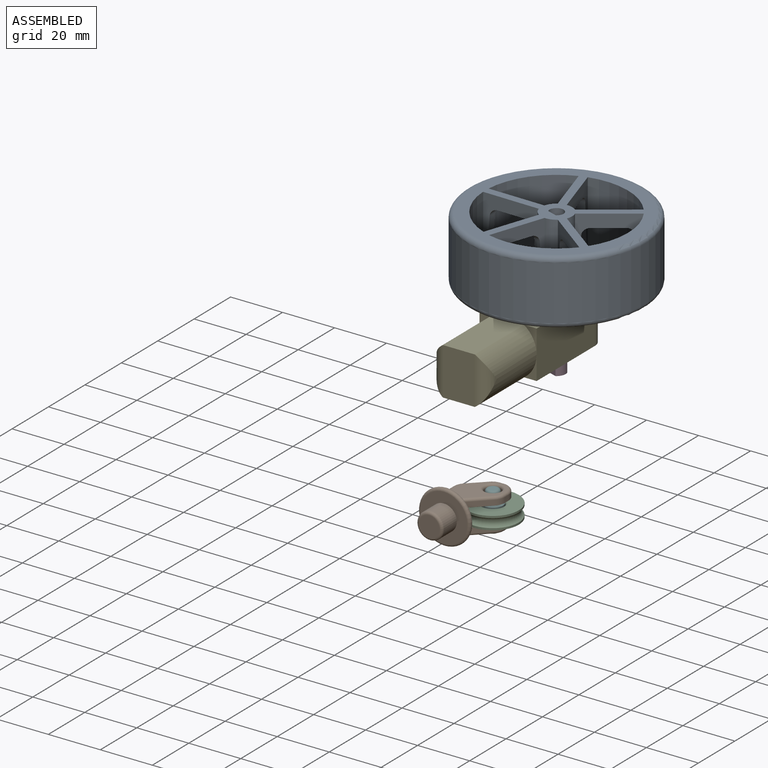
[diagram: assembled view]
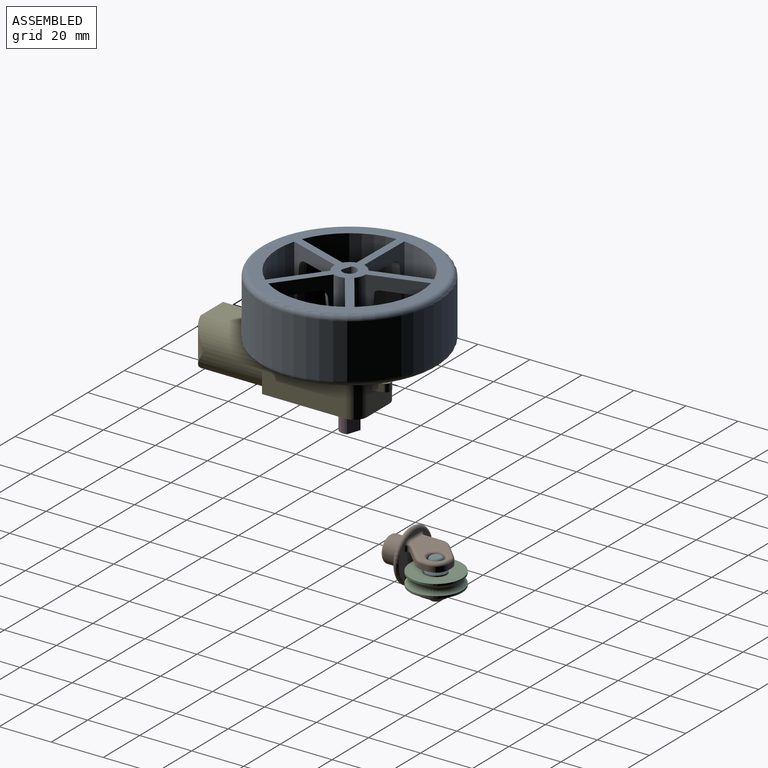
[diagram: assembled view, second angle]
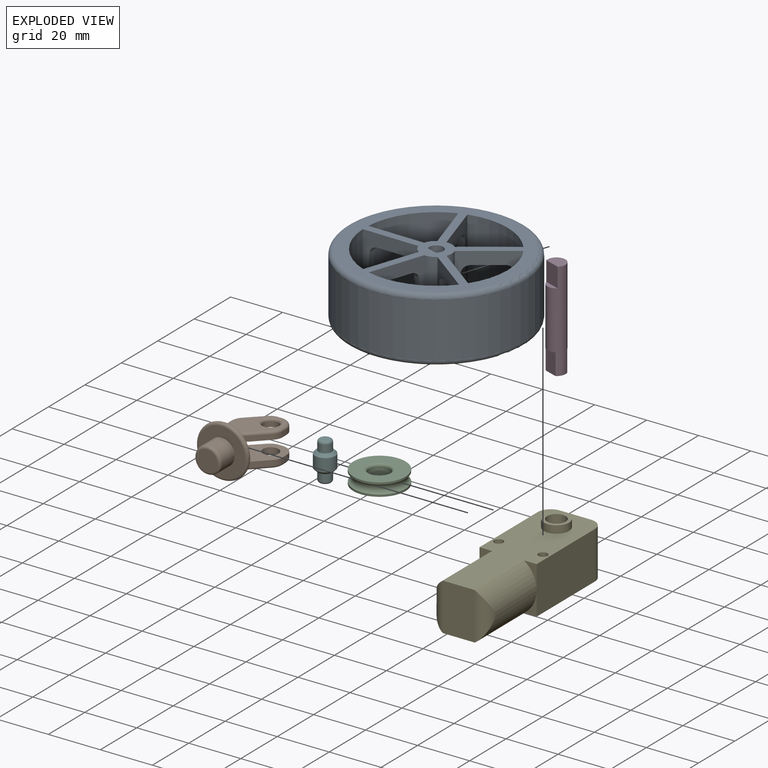
[diagram: exploded view]
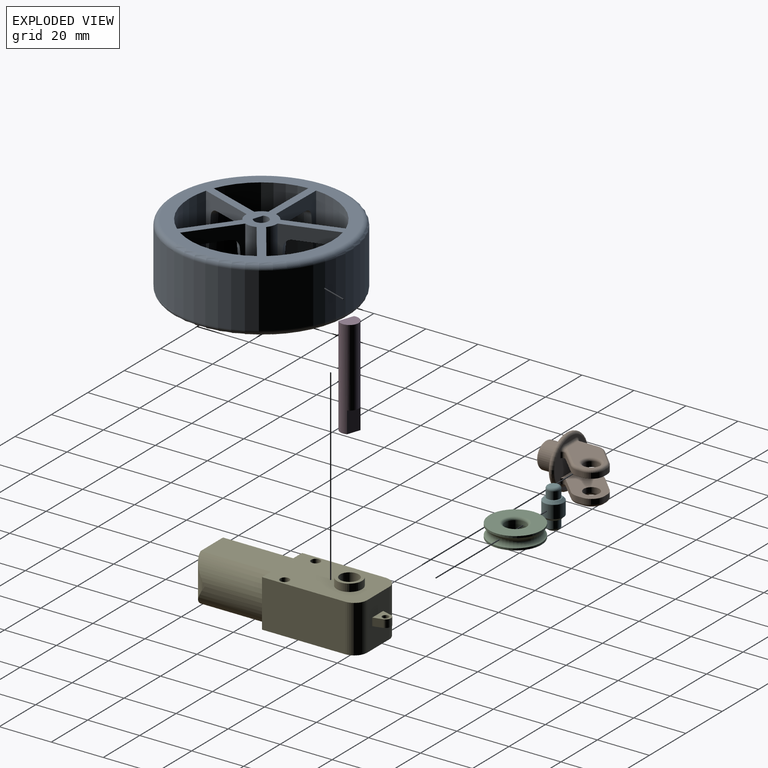
[diagram: exploded view, second angle]
ASSEMBLY  parts=6 mates=4
PART A: 53 faces, bbox 73.4x73.4x25 mm
  f0: plane 12.54x12.32mm, normal (0,0,-1), area 97.4mm2, adj f9,f10,f11,f12,f13,f14,f15,f16
  f1: cylinder r=27.5mm len=29.75mm, axis (0,0,1), area 788.9mm2, adj f7,f8,f9,f22
  f2: cylinder r=27.5mm len=29.05mm, axis (0,0,1), area 788.9mm2, adj f7,f8,f10,f12
  f3: cylinder r=27.5mm len=25.5mm, axis (0,0,1), area 788.9mm2, adj f7,f8,f13,f15
  f4: cylinder r=27.5mm len=25mm, axis (0,0,1), area 788.9mm2, adj f7,f8,f16,f18
  f5: cylinder r=27.5mm len=27.55mm, axis (0,0,1), area 788.9mm2, adj f7,f8,f19,f21
  f6: cylinder r=34mm len=68mm, axis (0,0,1), area 4486.2mm2, adj f51,f52
  f7: plane 64x64mm, normal (0,0,-1), area 856.8mm2, adj f1,f2,f3,f4,f5,f9,f10,f12
  f8: plane 64x64mm, normal (0,0,1), area 1257.1mm2, adj f1,f2,f3,f4,f5,f9,f10,f11
  f9: plane 25.04x16.46mm, normal (-0.65,-0.76,0), area 174.1mm2, adj f0,f1,f7,f8,f25,f46,f47,f48
  f10: plane 25.04x16.46mm, normal (0.65,0.76,0), area 174.1mm2, adj f0,f2,f7,f8,f11,f46,f47,f48
  f11: cylinder r=6mm len=25mm, axis (0,0,1), area 112.7mm2, adj f0,f8,f10,f12
  f12: plane 25.04x20.01mm, normal (-0.92,0.39,0), area 174.1mm2, adj f0,f2,f7,f8,f11,f41,f42,f43
  f13: plane 25.04x20.01mm, normal (0.92,-0.39,0), area 174.1mm2, adj f0,f3,f7,f8,f14,f41,f42,f43
  f14: cylinder r=6mm len=25mm, axis (0,0,1), area 112.7mm2, adj f0,f8,f13,f15
  f15: plane 25.04x21.61mm, normal (0.08,1,0), area 174.1mm2, adj f0,f3,f7,f8,f14,f36,f37,f38
  f16: plane 25.04x21.61mm, normal (-0.08,-1,0), area 174.1mm2, adj f0,f4,f7,f8,f17,f36,f37,f38
  f17: cylinder r=6mm len=25mm, axis (0,0,1), area 112.7mm2, adj f0,f8,f16,f18
  f18: plane 25.04x21.1mm, normal (0.97,0.23,0), area 174.1mm2, adj f0,f4,f7,f8,f17,f31,f32,f33
  f19: plane 25.04x21.1mm, normal (-0.97,-0.23,0), area 174.1mm2, adj f0,f5,f7,f8,f20,f31,f32,f33
  f20: cylinder r=6mm len=25mm, axis (0,0,1), area 112.7mm2, adj f0,f8,f19,f21
  f21: plane 25.04x18.53mm, normal (0.52,-0.85,0), area 174.1mm2, adj f0,f5,f7,f8,f20,f26,f27,f28
  f22: plane 25.04x18.53mm, normal (-0.52,0.85,0), area 174.1mm2, adj f0,f1,f7,f8,f25,f26,f27,f28
  f23: cylinder r=2.7mm len=25mm, axis (0,0,1), area 310.6mm2, adj f0,f8,f24
  f24: plane 25x3.05mm, normal (0.76,-0.65,0), area 100.6mm2, adj f0,f8,f23
  f25: cylinder r=6mm len=25mm, axis (0,0,1), area 112.7mm2, adj f0,f8,f9,f22
  f26: cone r=26.46mm half-angle=5deg, axis (0,0,-1), area 52mm2, adj f7,f21,f22,f27
  f27: torus R=21.96mm, axis (0,0,-1), area 13.4mm2, adj f21,f22,f26,f28
  f28: plane 11.13x8.39mm, normal (0,0,-1), area 33.5mm2, adj f21,f22,f27,f29
  f29: torus R=10.81mm, axis (0,0,-1), area 13.4mm2, adj f21,f22,f28,f30
  f30: cone r=7.82mm half-angle=5deg, axis (0,0,1), area 52.8mm2, adj f0,f21,f22,f29
  f31: cone r=26.46mm half-angle=5deg, axis (0,0,-1), area 52mm2, adj f7,f18,f19,f32
  f32: torus R=21.96mm, axis (0,0,-1), area 13.4mm2, adj f18,f19,f31,f33
  f33: plane 11.6x5.5mm, normal (0,0,-1), area 33.5mm2, adj f18,f19,f32,f34
  f34: torus R=10.81mm, axis (0,0,-1), area 13.4mm2, adj f18,f19,f33,f35
  f35: cone r=7.82mm half-angle=5deg, axis (0,0,1), area 52.8mm2, adj f0,f18,f19,f34
  f36: cone r=26.46mm half-angle=5deg, axis (0,0,-1), area 52mm2, adj f7,f15,f16,f37
  f37: torus R=21.96mm, axis (0,0,-1), area 13.4mm2, adj f15,f16,f36,f38
  f38: plane 11.41x3.9mm, normal (0,0,-1), area 33.5mm2, adj f15,f16,f37,f39
  f39: torus R=10.81mm, axis (0,0,-1), area 13.4mm2, adj f15,f16,f38,f40
  f40: cone r=7.82mm half-angle=5deg, axis (0,0,1), area 52.8mm2, adj f0,f15,f16,f39
  f41: cone r=26.46mm half-angle=5deg, axis (0,0,-1), area 52mm2, adj f7,f12,f13,f42
  f42: torus R=21.96mm, axis (0,0,-1), area 13.4mm2, adj f12,f13,f41,f43
  f43: plane 11.5x7.09mm, normal (0,0,-1), area 33.5mm2, adj f12,f13,f42,f44
  f44: torus R=10.81mm, axis (0,0,-1), area 13.4mm2, adj f12,f13,f43,f45
  f45: cone r=7.82mm half-angle=5deg, axis (0,0,1), area 52.8mm2, adj f0,f12,f13,f44
  f46: cone r=7.82mm half-angle=5deg, axis (0,0,1), area 52.8mm2, adj f0,f9,f10,f47
  f47: torus R=10.81mm, axis (0,0,-1), area 13.4mm2, adj f9,f10,f46,f48
  f48: plane 10.46x9.58mm, normal (0,0,-1), area 33.5mm2, adj f9,f10,f47,f49
  f49: torus R=21.96mm, axis (0,0,-1), area 13.4mm2, adj f9,f10,f48,f50
  f50: cone r=26.46mm half-angle=5deg, axis (0,0,-1), area 52mm2, adj f7,f9,f10,f49
  f51: torus R=32mm, axis (0,0,-1), area 656.8mm2, adj f6,f8
  f52: torus R=32mm, axis (0,0,-1), area 656.8mm2, adj f6,f7
PART B: 60 faces, bbox 24.9x29.4x21.6 mm
  f0: plane 18x18mm, normal (0,1,0), area 172.7mm2, adj f8,f23,f35,f37,f39,f40,f41,f49
  f1: plane 7.14x2mm, normal (-1,0,0), area 14.3mm2, adj f8,f12,f48,f49
  f2: plane 5.93x5.83mm, normal (-0.7,0.71,0), area 16.6mm2, adj f8,f12,f13,f44
  f3: plane 2x1.32mm, normal (0,1,0), area 2.6mm2, adj f8,f13,f14,f43
  f4: plane 2x1.93mm, normal (1,0,0), area 3.9mm2, adj f8,f14,f15,f47
  f5: cylinder r=3mm len=6mm, axis (0,0,1), area 37.7mm2, adj f8,f57
  f6: plane 6.8x6.77mm, normal (0.71,-0.71,0), area 19.2mm2, adj f8,f15,f52,f55
  f7: plane 16.97x15.25mm, normal (0,0,-1), area 126.4mm2, adj f42,f43,f44,f45,f46,f47,f48,f50
  f8: plane 18.97x18.25mm, normal (0,0,1), area 205.2mm2, adj f0,f1,f2,f3,f4,f5,f6,f12
  f9: plane 18x18mm, normal (0,-1,0), area 175.9mm2, adj f11,f59
  f10: plane 8x8mm, normal (0,-1,0), area 50.3mm2, adj f58
  f11: cylinder r=5mm len=10mm, axis (0,1,0), area 219.9mm2, adj f9,f58
  f12: cylinder r=5mm len=3.57mm, axis (0,0,-1), area 7.9mm2, adj f1,f2,f8,f46
  f13: cylinder r=5mm len=3.51mm, axis (0,0,-1), area 7.8mm2, adj f2,f3,f8,f42
  f14: cylinder r=5mm len=5mm, axis (0,0,-1), area 15.7mm2, adj f3,f4,f8,f45
  f15: cylinder r=5mm len=3.53mm, axis (0,0,-1), area 7.8mm2, adj f4,f6,f8,f50
  f16: plane 7.14x2mm, normal (-1,0,0), area 14.3mm2, adj f23,f24,f38,f41
  f17: plane 5.93x5.83mm, normal (-0.7,0.71,0), area 16.6mm2, adj f23,f24,f25,f33
  f18: plane 2x1.32mm, normal (0,1,0), area 2.6mm2, adj f23,f25,f26,f29
  f19: plane 2x1.93mm, normal (1,0,0), area 3.9mm2, adj f23,f26,f27,f30
  f20: cylinder r=3mm len=6mm, axis (0,0,-1), area 37.7mm2, adj f23,f56
  f21: plane 6.8x6.77mm, normal (0.71,-0.71,0), area 19.2mm2, adj f23,f27,f34,f35
  f22: plane 16.97x15.25mm, normal (0,0,1), area 126.4mm2, adj f28,f29,f30,f31,f32,f33,f34,f36
  f23: plane 18.97x18.25mm, normal (0,0,-1), area 205.2mm2, adj f0,f16,f17,f18,f19,f20,f21,f24
  f24: cylinder r=5mm len=3.57mm, axis (0,0,1), area 7.9mm2, adj f16,f17,f23,f36
  f25: cylinder r=5mm len=3.51mm, axis (0,0,1), area 7.8mm2, adj f17,f18,f23,f31
  f26: cylinder r=5mm len=5mm, axis (0,0,1), area 15.7mm2, adj f18,f19,f23,f28
  f27: cylinder r=5mm len=3.53mm, axis (0,0,1), area 7.8mm2, adj f19,f21,f23,f32
  f28: torus R=4mm, axis (0,0,1), area 11.4mm2, adj f22,f26,f29,f30
  f29: cylinder r=1mm len=1.32mm, axis (-1,0,0), area 2.1mm2, adj f18,f22,f28,f31
  f30: cylinder r=1mm len=1.93mm, axis (0,1,0), area 3mm2, adj f19,f22,f28,f32
  f31: torus R=4mm, axis (0,0,1), area 5.7mm2, adj f22,f25,f29,f33
  f32: torus R=4mm, axis (0,0,1), area 5.7mm2, adj f22,f27,f30,f34
  f33: cylinder r=1mm len=6.63mm, axis (-0.71,-0.7,0), area 13.1mm2, adj f17,f22,f31,f36
  f34: cylinder r=1mm len=8.92mm, axis (0.71,0.71,0), area 16.2mm2, adj f21,f22,f32,f37
  f35: cylinder r=1mm len=2mm, axis (0,0,1), area 4.7mm2, adj f0,f21,f23,f37
  f36: torus R=4mm, axis (0,0,1), area 5.8mm2, adj f22,f24,f33,f38
  f37: bspline ~3.31x2.34mm, area 5.4mm2, adj f0,f34,f35,f39
  f38: cylinder r=1mm len=7.14mm, axis (0,-1,0), area 11.2mm2, adj f16,f22,f36,f40
  f39: cylinder r=1mm len=5.91mm, axis (1,0,0), area 9.3mm2, adj f0,f22,f37,f40
  f40: torus R=2mm, axis (0,-1,0), area 3.4mm2, adj f0,f38,f39,f41
  f41: cylinder r=1mm len=2mm, axis (0,0,1), area 3.1mm2, adj f0,f16,f23,f40
  f42: torus R=4mm, axis (0,0,-1), area 5.7mm2, adj f7,f13,f43,f44
  f43: cylinder r=1mm len=1.32mm, axis (-1,0,0), area 2.1mm2, adj f3,f7,f42,f45
  f44: cylinder r=1mm len=6.63mm, axis (-0.71,-0.7,0), area 13.1mm2, adj f2,f7,f42,f46
  f45: torus R=4mm, axis (0,0,-1), area 11.4mm2, adj f7,f14,f43,f47
  f46: torus R=4mm, axis (0,0,-1), area 5.8mm2, adj f7,f12,f44,f48
  f47: cylinder r=1mm len=1.93mm, axis (0,1,0), area 3mm2, adj f4,f7,f45,f50
  f48: cylinder r=1mm len=7.14mm, axis (0,-1,0), area 11.2mm2, adj f1,f7,f46,f51
  f49: cylinder r=1mm len=2mm, axis (0,0,-1), area 3.1mm2, adj f0,f1,f8,f51
  f50: torus R=4mm, axis (0,0,-1), area 5.7mm2, adj f7,f15,f47,f52
  f51: torus R=2mm, axis (0,-1,0), area 3.4mm2, adj f0,f48,f49,f53
  f52: cylinder r=1mm len=8.92mm, axis (0.71,0.71,0), area 16.2mm2, adj f6,f7,f50,f54
  f53: cylinder r=1mm len=5.91mm, axis (1,0,0), area 9.3mm2, adj f0,f7,f51,f54
  f54: bspline ~3.31x2.34mm, area 5.4mm2, adj f0,f52,f53,f55
  f55: cylinder r=1mm len=2mm, axis (0,0,-1), area 4.7mm2, adj f0,f6,f8,f54
  f56: torus R=4mm, axis (0,0,1), area 33.2mm2, adj f20,f22
  f57: torus R=4mm, axis (0,0,-1), area 33.2mm2, adj f5,f7
  f58: torus R=4mm, axis (0,-1,0), area 45.8mm2, adj f10,f11
  f59: torus R=9mm, axis (0,-1,0), area 190.2mm2, adj f0,f9
PART C: 8 faces, bbox 23.8x23.8x5 mm
  f0: cylinder r=10mm len=20mm, axis (0,0,-1), area 48.3mm2, adj f3,f5
  f1: cylinder r=4mm len=8mm, axis (0,0,-1), area 75.4mm2, adj f6,f7
  f2: cylinder r=10mm len=20mm, axis (0,0,-1), area 48.3mm2, adj f4,f5
  f3: plane 20x20mm, normal (0,0,1), area 235.6mm2, adj f0,f7
  f4: plane 20x20mm, normal (0,0,-1), area 235.6mm2, adj f2,f6
  f5: torus R=11mm, axis (0,0,1), area 246mm2, adj f0,f2
  f6: torus R=5mm, axis (0,0,1), area 43.1mm2, adj f1,f4
  f7: torus R=5mm, axis (0,0,1), area 43.1mm2, adj f1,f3
PART D: 9 faces, bbox 7x7x38 mm
  f0: plane 7x6.93mm, normal (0,0,-1), area 29.7mm2, adj f2,f5,f7
  f1: plane 6.94x6.8mm, normal (0,0,1), area 31mm2, adj f2,f3
  f2: cylinder r=3.5mm len=38mm, axis (0,0,1), area 682.1mm2, adj f0,f1,f3,f4,f5,f6,f7,f8
  f3: plane 7.5x4.6mm, normal (-0.76,0.65,0), area 45.5mm2, adj f1,f2,f4
  f4: plane 4.66x4.15mm, normal (0,0,1), area 7.5mm2, adj f2,f3
  f5: plane 8.25x4mm, normal (-0.76,0.65,0), area 43.5mm2, adj f0,f2,f6
  f6: plane 4x3.47mm, normal (0,0,-1), area 4.4mm2, adj f2,f5
  f7: plane 8.25x4mm, normal (0.76,-0.65,0), area 43.5mm2, adj f0,f2,f8
  f8: plane 4x3.47mm, normal (0,0,-1), area 4.4mm2, adj f2,f7
PART E: 33 faces, bbox 22x69.1x23.2 mm
  f0: plane 32x18.25mm, normal (-1,0,0), area 584mm2, adj f4,f5,f7,f25,f26
  f1: cylinder r=5mm len=18.25mm, axis (0,0,1), area 81.4mm2, adj f4,f5,f8,f24
  f2: cylinder r=5mm len=18.25mm, axis (0,0,1), area 81.4mm2, adj f4,f5,f8,f22
  f3: plane 32x18.25mm, normal (1,0,0), area 584mm2, adj f4,f5,f9,f21,f23
  f4: plane 64x22mm, normal (0,0,-1), area 1041.8mm2, adj f0,f1,f2,f3,f6,f7,f8,f9
  f5: plane 64x22mm, normal (0,0,1), area 1031.1mm2, adj f0,f1,f2,f3,f6,f7,f8,f9
  f6: plane 18.25x12mm, normal (0,-1,0), area 201mm2, adj f4,f5,f7,f9,f13,f14,f15,f16
  f7: cylinder r=5mm len=18.25mm, axis (0,0,1), area 143.3mm2, adj f0,f4,f5,f6
  f8: plane 18.25x12mm, normal (0,1,0), area 219mm2, adj f1,f2,f4,f5
  f9: cylinder r=5mm len=18.25mm, axis (0,0,1), area 143.3mm2, adj f3,f4,f5,f6
  f10: cylinder r=4.85mm len=9.7mm, axis (0,0,1), area 88.4mm2, adj f4,f12
  f11: cylinder r=3.6mm len=21.65mm, axis (0,0,1), area 489.7mm2, adj f12,f28
  f12: plane 9.7x9.7mm, normal (0,0,-1), area 33.2mm2, adj f10,f11
  f13: plane 6x5.1mm, normal (0,0,-1), area 17.8mm2, adj f6,f14,f16,f17,f18,f19,f20
  f14: plane 3.62x3mm, normal (0.97,-0.26,0), area 11.2mm2, adj f6,f13,f15,f18
  f15: plane 6x5.1mm, normal (0,0,1), area 17.8mm2, adj f6,f14,f16,f17,f18,f19,f20
  f16: plane 3.62x3mm, normal (-0.97,-0.26,0), area 11.2mm2, adj f6,f13,f15,f19
  f17: plane 3x0.2mm, normal (0,-1,0), area 0.6mm2, adj f13,f15,f18,f19
  f18: cylinder r=2mm len=3mm, axis (0,0,1), area 7.9mm2, adj f13,f14,f15,f17
  f19: cylinder r=2mm len=3mm, axis (0,0,1), area 7.9mm2, adj f13,f15,f16,f17
  f20: cylinder r=1.25mm len=3mm, axis (0,0,-1), area 23.6mm2, adj f13,f15
  f21: plane 9.13x4.86mm, normal (0,1,0), area 13.2mm2, adj f3,f5,f22
  f22: cylinder r=11mm len=27mm, axis (0,1,0), area 539.6mm2, adj f2,f4,f5,f21,f23
  f23: plane 9.13x4.86mm, normal (0,1,0), area 13.2mm2, adj f3,f4,f22
  f24: cylinder r=11mm len=27mm, axis (0,1,0), area 539.6mm2, adj f1,f4,f5,f25,f26
  f25: plane 9.13x4.86mm, normal (0,1,0), area 13.2mm2, adj f0,f5,f24
  f26: plane 9.13x4.86mm, normal (0,1,0), area 13.2mm2, adj f0,f4,f24
  f27: cylinder r=4.85mm len=9.7mm, axis (0,0,-1), area 15.2mm2, adj f5,f28
  f28: plane 9.7x9.7mm, normal (0,0,1), area 33.2mm2, adj f11,f27
  f29: cylinder r=1.85mm len=3.7mm, axis (0,0,-1), area 23.2mm2, adj f5,f30
  f30: plane 3.7x3.7mm, normal (0,0,1), area 10.8mm2, adj f29
  f31: cylinder r=1.75mm len=18.25mm, axis (0,0,-1), area 200.7mm2, adj f4,f5
  f32: cylinder r=1.75mm len=18.25mm, axis (0,0,-1), area 200.7mm2, adj f4,f5
PART F: 11 faces, bbox 7.8x7.8x15 mm
  f0: cylinder r=3.88mm len=7.75mm, axis (0,0,-1), area 121.7mm2, adj f7,f8
  f1: plane 5.75x5.75mm, normal (0,0,1), area 6.3mm2, adj f5,f8
  f2: plane 5.75x5.75mm, normal (0,0,-1), area 6.3mm2, adj f4,f7
  f3: plane 3x3mm, normal (0,0,-1), area 7.1mm2, adj f9
  f4: cylinder r=2.5mm len=5mm, axis (0,0,-1), area 47.1mm2, adj f2,f9
  f5: cylinder r=2.5mm len=5mm, axis (0,0,-1), area 47.1mm2, adj f1,f10
  f6: plane 3x3mm, normal (0,0,1), area 7.1mm2, adj f10
  f7: cone r=3.88mm half-angle=45deg, axis (0,0,1), area 30mm2, adj f0,f2
  f8: cone r=2.88mm half-angle=45deg, axis (0,0,-1), area 30mm2, adj f0,f1
  f9: torus R=1.5mm, axis (0,0,1), area 21.1mm2, adj f3,f4
  f10: torus R=1.5mm, axis (0,0,1), area 21.1mm2, adj f5,f6
PLACE A rot(axis=(0,0,1),111.9deg) t=(-2.39,-83.66,-38.15)mm
PLACE B t=(-1.38,9,-7.52)mm
PLACE C t=(-1.38,9,-8.52)mm
PLACE D rot(axis=(0,0,1),111.9deg) t=(-2.39,-83.66,-38.15)mm
PLACE E rot(axis=(1,0,0),180deg) t=(-32.9,-63.03,186.57)mm fixed
PLACE F t=(-1.38,9,-8.52)mm
MATE revolute B.f5 <-> F.f0  axis (0,0,1) through (-1.38,9,-8.52)mm
MATE fastened D.f3 <-> A.f24  axis (-0.32,-0.95,0) through (30.11,-3.51,85.3)mm
MATE revolute E.f10 <-> D.f2  axis (0,0,-1) through (30.67,-1.85,63.8)mm
MATE fastened C.f1 <-> F.f0  axis (0,0,-1) through (-1.38,9,-6.02)mm
